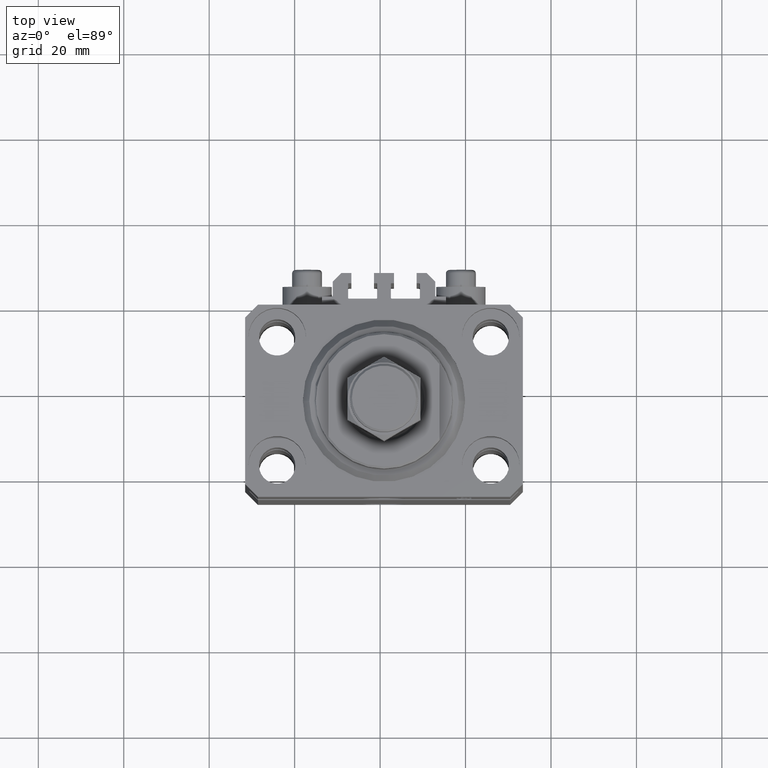
[diagram: clean part render]
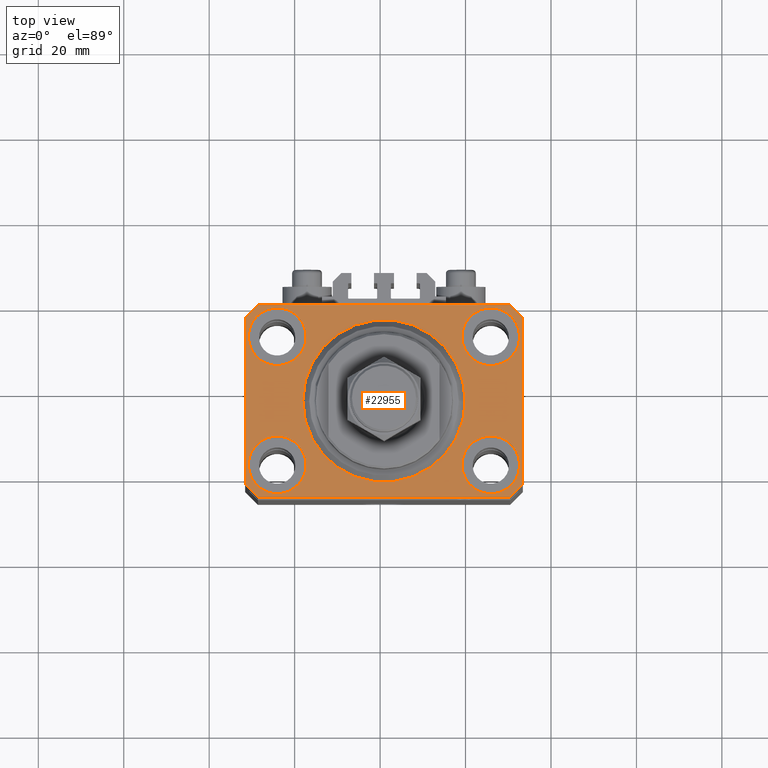
[diagram: same view with one face highlighted and labeled with its STEP entity id]
A machine part, top view. The second image highlights one B-rep face of the part: STEP entity #22955.
In plain terms, the highlighted planar face has unit normal (0, 0, 1).
Its self-contained STEP definition (entity closure, byte-faithful):
#251 = VERTEX_POINT ( 'NONE', #32406 ) ;
#336 = DIRECTION ( 'NONE',  ( 0.000000000000000000, 0.000000000000000000, 1.000000000000000000 ) ) ;
#439 = DIRECTION ( 'NONE',  ( 0.7071067811865483499, 0.7071067811865466846, 0.000000000000000000 ) ) ;
#1397 = DIRECTION ( 'NONE',  ( 1.334402673828349134E-14, 1.000000000000000000, 0.000000000000000000 ) ) ;
#2185 = DIRECTION ( 'NONE',  ( 1.000000000000000000, 0.000000000000000000, 0.000000000000000000 ) ) ;
#2200 = VERTEX_POINT ( 'NONE', #21116 ) ;
#2348 = FACE_BOUND ( 'NONE', #31051, .T. ) ;
#2692 = CARTESIAN_POINT ( 'NONE',  ( -18.24999999997747224, 15.00000000000000000, 0.000000000000000000 ) ) ;
#2762 = DIRECTION ( 'NONE',  ( 0.000000000000000000, 0.000000000000000000, 1.000000000000000000 ) ) ;
#3470 = ORIENTED_EDGE ( 'NONE', *, *, #46108, .T. ) ;
#3638 = AXIS2_PLACEMENT_3D ( 'NONE', #6412, #13908, #13415 ) ;
#4787 = ORIENTED_EDGE ( 'NONE', *, *, #34975, .F. ) ;
#5166 = CARTESIAN_POINT ( 'NONE',  ( 29.49999999999650413, -22.49999999999949196, 0.000000000000000000 ) ) ;
#5510 = CARTESIAN_POINT ( 'NONE',  ( 31.74999999997746869, -15.00000000000000000, 0.000000000000000000 ) ) ;
#6001 = EDGE_CURVE ( 'NONE', #2200, #15724, #17361, .T. ) ;
#6113 = DIRECTION ( 'NONE',  ( -1.000000000000000000, -2.352167425053553784E-16, 0.000000000000000000 ) ) ;
#6412 = CARTESIAN_POINT ( 'NONE',  ( 0.000000000000000000, 0.000000000000000000, 0.000000000000000000 ) ) ;
#6438 = CARTESIAN_POINT ( 'NONE',  ( 31.74999999995845101, 15.00000000000000888, 0.000000000000000000 ) ) ;
#6600 = VERTEX_POINT ( 'NONE', #33617 ) ;
#6850 = CARTESIAN_POINT ( 'NONE',  ( 0.000000000000000000, 0.000000000000000000, 0.000000000000000000 ) ) ;
#7099 = DIRECTION ( 'NONE',  ( 1.000000000000000000, 0.000000000000000000, -0.000000000000000000 ) ) ;
#7818 = AXIS2_PLACEMENT_3D ( 'NONE', #21320, #36040, #25045 ) ;
#8042 = ORIENTED_EDGE ( 'NONE', *, *, #9051, .F. ) ;
#8362 = VERTEX_POINT ( 'NONE', #37786 ) ;
#8504 = ORIENTED_EDGE ( 'NONE', *, *, #14868, .T. ) ;
#8773 = AXIS2_PLACEMENT_3D ( 'NONE', #10572, #10323, #11572 ) ;
#8878 = AXIS2_PLACEMENT_3D ( 'NONE', #40705, #43952, #47436 ) ;
#9051 = EDGE_CURVE ( 'NONE', #41871, #28601, #37934, .T. ) ;
#9225 = CARTESIAN_POINT ( 'NONE',  ( 25.00000000000000355, -15.00000000000000000, 0.000000000000000000 ) ) ;
#9345 = CARTESIAN_POINT ( 'NONE',  ( 32.49999999999702993, 19.49999999999945999, 0.000000000000000000 ) ) ;
#10286 = EDGE_LOOP ( 'NONE', ( #17645, #18177 ) ) ;
#10323 = DIRECTION ( 'NONE',  ( 0.000000000000000000, 0.000000000000000000, 1.000000000000000000 ) ) ;
#10572 = CARTESIAN_POINT ( 'NONE',  ( 24.99999999999999645, 15.00000000000000888, 0.000000000000000000 ) ) ;
#11421 = CARTESIAN_POINT ( 'NONE',  ( -32.49999999999650413, -19.49999999999949907, 0.000000000000000000 ) ) ;
#11560 = ORIENTED_EDGE ( 'NONE', *, *, #46988, .T. ) ;
#11572 = DIRECTION ( 'NONE',  ( 1.000000000000000000, 0.000000000000000000, 0.000000000000000000 ) ) ;
#12088 = ORIENTED_EDGE ( 'NONE', *, *, #29205, .T. ) ;
#13348 = ORIENTED_EDGE ( 'NONE', *, *, #44815, .F. ) ;
#13415 = DIRECTION ( 'NONE',  ( 1.000000000000000000, 0.000000000000000000, 0.000000000000000000 ) ) ;
#13416 = EDGE_LOOP ( 'NONE', ( #26873, #27262 ) ) ;
#13455 = ORIENTED_EDGE ( 'NONE', *, *, #34065, .F. ) ;
#13908 = DIRECTION ( 'NONE',  ( 0.000000000000000000, 0.000000000000000000, 1.000000000000000000 ) ) ;
#14190 = AXIS2_PLACEMENT_3D ( 'NONE', #37127, #29152, #2185 ) ;
#14334 = FACE_BOUND ( 'NONE', #17222, .T. ) ;
#14747 = CARTESIAN_POINT ( 'NONE',  ( -19.00000000000000000, 2.326828918379970970E-15, 0.000000000000000000 ) ) ;
#14868 = EDGE_CURVE ( 'NONE', #15724, #26048, #18235, .T. ) ;
#15230 = AXIS2_PLACEMENT_3D ( 'NONE', #6850, #22076, #7099 ) ;
#15724 = VERTEX_POINT ( 'NONE', #20759 ) ;
#15868 = CARTESIAN_POINT ( 'NONE',  ( -31.75000000002253842, 15.00000000000000000, 0.000000000000000000 ) ) ;
#16050 = VERTEX_POINT ( 'NONE', #2692 ) ;
#16060 = CIRCLE ( 'NONE', #8773, 6.749999999958452790 ) ;
#16825 = VECTOR ( 'NONE', #27429, 1000.000000000000000 ) ;
#17147 = CARTESIAN_POINT ( 'NONE',  ( 32.49999999999651124, -19.49999999999949196, 0.000000000000000000 ) ) ;
#17222 = EDGE_LOOP ( 'NONE', ( #8042, #4787 ) ) ;
#17241 = EDGE_CURVE ( 'NONE', #8362, #40525, #33307, .T. ) ;
#17349 = CARTESIAN_POINT ( 'NONE',  ( 29.49999999999650413, -22.49999999999949196, 0.000000000000000000 ) ) ;
#17361 = LINE ( 'NONE', #43793, #25052 ) ;
#17397 = CIRCLE ( 'NONE', #49245, 6.750000000022533087 ) ;
#17645 = ORIENTED_EDGE ( 'NONE', *, *, #42084, .F. ) ;
#17724 = VECTOR ( 'NONE', #28552, 1000.000000000000000 ) ;
#18004 = DIRECTION ( 'NONE',  ( 1.000000000000000000, 0.000000000000000000, 0.000000000000000000 ) ) ;
#18177 = ORIENTED_EDGE ( 'NONE', *, *, #45348, .F. ) ;
#18235 = LINE ( 'NONE', #36944, #39625 ) ;
#18416 = CIRCLE ( 'NONE', #8878, 6.749999999958452790 ) ;
#18460 = VECTOR ( 'NONE', #439, 1000.000000000000000 ) ;
#18582 = FACE_BOUND ( 'NONE', #10286, .T. ) ;
#19346 = DIRECTION ( 'NONE',  ( 1.000000000000000000, 0.000000000000000000, 0.000000000000000000 ) ) ;
#20101 = LINE ( 'NONE', #9345, #17724 ) ;
#20731 = VERTEX_POINT ( 'NONE', #17349 ) ;
#20759 = CARTESIAN_POINT ( 'NONE',  ( -29.49999999999650413, 22.49999999999949907, 0.000000000000000000 ) ) ;
#21041 = LINE ( 'NONE', #40000, #44662 ) ;
#21116 = CARTESIAN_POINT ( 'NONE',  ( 29.49999999999707967, 22.49999999999951328, 0.000000000000000000 ) ) ;
#21320 = CARTESIAN_POINT ( 'NONE',  ( 0.000000000000000000, 0.000000000000000000, 0.000000000000000000 ) ) ;
#21541 = ORIENTED_EDGE ( 'NONE', *, *, #6001, .T. ) ;
#22076 = DIRECTION ( 'NONE',  ( 0.000000000000000000, 0.000000000000000000, 1.000000000000000000 ) ) ;
#22374 = CARTESIAN_POINT ( 'NONE',  ( 32.49999999999702993, 19.49999999999945999, 0.000000000000000000 ) ) ;
#22503 = VERTEX_POINT ( 'NONE', #36365 ) ;
#22644 = LINE ( 'NONE', #11421, #29628 ) ;
#22955 = ADVANCED_FACE ( 'NONE', ( #25811, #48492, #18582, #2348, #14334, #44520 ), #44774, .T. ) ;
#23435 = LINE ( 'NONE', #34659, #16825 ) ;
#23505 = EDGE_CURVE ( 'NONE', #26048, #42480, #23435, .T. ) ;
#24003 = CIRCLE ( 'NONE', #24776, 6.749999999977465137 ) ;
#24422 = EDGE_LOOP ( 'NONE', ( #13348, #32834 ) ) ;
#24776 = AXIS2_PLACEMENT_3D ( 'NONE', #9225, #39658, #28184 ) ;
#24982 = CARTESIAN_POINT ( 'NONE',  ( -25.00000000000000355, -15.00000000000000000, 0.000000000000000000 ) ) ;
#25045 = DIRECTION ( 'NONE',  ( 1.000000000000000000, 0.000000000000000000, 0.000000000000000000 ) ) ;
#25052 = VECTOR ( 'NONE', #6113, 1000.000000000000000 ) ;
#25154 = CARTESIAN_POINT ( 'NONE',  ( 18.25000000004154543, 15.00000000000000888, 0.000000000000000000 ) ) ;
#25811 = FACE_BOUND ( 'NONE', #13416, .T. ) ;
#26048 = VERTEX_POINT ( 'NONE', #37159 ) ;
#26580 = CARTESIAN_POINT ( 'NONE',  ( 25.00000000000000355, -15.00000000000000000, 0.000000000000000000 ) ) ;
#26873 = ORIENTED_EDGE ( 'NONE', *, *, #45506, .F. ) ;
#27047 = ORIENTED_EDGE ( 'NONE', *, *, #31704, .F. ) ;
#27167 = LINE ( 'NONE', #5166, #18460 ) ;
#27262 = ORIENTED_EDGE ( 'NONE', *, *, #17241, .F. ) ;
#27333 = CARTESIAN_POINT ( 'NONE',  ( -25.00000000000000355, 15.00000000000000000, 0.000000000000000000 ) ) ;
#27429 = DIRECTION ( 'NONE',  ( 0.000000000000000000, -1.000000000000000000, 0.000000000000000000 ) ) ;
#27997 = AXIS2_PLACEMENT_3D ( 'NONE', #24982, #2762, #18004 ) ;
#28184 = DIRECTION ( 'NONE',  ( 1.000000000000000000, 0.000000000000000000, 0.000000000000000000 ) ) ;
#28220 = CARTESIAN_POINT ( 'NONE',  ( -18.24999999995846167, -15.00000000000000000, 0.000000000000000000 ) ) ;
#28552 = DIRECTION ( 'NONE',  ( -0.7071067811865352493, 0.7071067811865597852, 0.000000000000000000 ) ) ;
#28601 = VERTEX_POINT ( 'NONE', #14747 ) ;
#29039 = CARTESIAN_POINT ( 'NONE',  ( 19.00000000000000000, 0.000000000000000000, 0.000000000000000000 ) ) ;
#29045 = EDGE_CURVE ( 'NONE', #251, #35530, #36342, .T. ) ;
#29152 = DIRECTION ( 'NONE',  ( 0.000000000000000000, 0.000000000000000000, 1.000000000000000000 ) ) ;
#29205 = EDGE_CURVE ( 'NONE', #35530, #2200, #20101, .T. ) ;
#29366 = ORIENTED_EDGE ( 'NONE', *, *, #29045, .T. ) ;
#29585 = DIRECTION ( 'NONE',  ( 1.000000000000000000, 0.000000000000000000, 0.000000000000000000 ) ) ;
#29628 = VECTOR ( 'NONE', #41106, 1000.000000000000114 ) ;
#31051 = EDGE_LOOP ( 'NONE', ( #13455, #27047 ) ) ;
#31452 = CARTESIAN_POINT ( 'NONE',  ( -32.49999999999650413, -19.49999999999949907, 0.000000000000000000 ) ) ;
#31704 = EDGE_CURVE ( 'NONE', #41671, #16050, #35588, .T. ) ;
#31789 = DIRECTION ( 'NONE',  ( 0.000000000000000000, 0.000000000000000000, 1.000000000000000000 ) ) ;
#32406 = CARTESIAN_POINT ( 'NONE',  ( 32.49999999999651124, -19.49999999999949196, 0.000000000000000000 ) ) ;
#32834 = ORIENTED_EDGE ( 'NONE', *, *, #40930, .F. ) ;
#33307 = CIRCLE ( 'NONE', #14190, 6.750000000041541881 ) ;
#33617 = CARTESIAN_POINT ( 'NONE',  ( -29.49999999999650413, -22.49999999999949907, 0.000000000000000000 ) ) ;
#34065 = EDGE_CURVE ( 'NONE', #16050, #41671, #17397, .T. ) ;
#34659 = CARTESIAN_POINT ( 'NONE',  ( -32.49999999999650413, 19.49999999999949907, 0.000000000000000000 ) ) ;
#34975 = EDGE_CURVE ( 'NONE', #28601, #41871, #41290, .T. ) ;
#35237 = VECTOR ( 'NONE', #1397, 1000.000000000000000 ) ;
#35530 = VERTEX_POINT ( 'NONE', #22374 ) ;
#35588 = CIRCLE ( 'NONE', #38811, 6.750000000022533087 ) ;
#36040 = DIRECTION ( 'NONE',  ( 0.000000000000000000, 0.000000000000000000, 1.000000000000000000 ) ) ;
#36342 = LINE ( 'NONE', #17147, #35237 ) ;
#36365 = CARTESIAN_POINT ( 'NONE',  ( 18.25000000002253842, -15.00000000000000000, 0.000000000000000000 ) ) ;
#36536 = VERTEX_POINT ( 'NONE', #6438 ) ;
#36703 = DIRECTION ( 'NONE',  ( -0.7071067811865474617, -0.7071067811865474617, 0.000000000000000000 ) ) ;
#36944 = CARTESIAN_POINT ( 'NONE',  ( -29.49999999999650413, 22.49999999999949907, 0.000000000000000000 ) ) ;
#37127 = CARTESIAN_POINT ( 'NONE',  ( -25.00000000000000355, -15.00000000000000000, 0.000000000000000000 ) ) ;
#37159 = CARTESIAN_POINT ( 'NONE',  ( -32.49999999999650413, 19.49999999999949907, 0.000000000000000000 ) ) ;
#37476 = VERTEX_POINT ( 'NONE', #5510 ) ;
#37786 = CARTESIAN_POINT ( 'NONE',  ( -31.75000000004154899, -15.00000000000000000, 0.000000000000000000 ) ) ;
#37934 = CIRCLE ( 'NONE', #3638, 19.00000000000000000 ) ;
#38356 = AXIS2_PLACEMENT_3D ( 'NONE', #26580, #336, #19346 ) ;
#38811 = AXIS2_PLACEMENT_3D ( 'NONE', #27333, #31789, #46997 ) ;
#39625 = VECTOR ( 'NONE', #36703, 1000.000000000000114 ) ;
#39658 = DIRECTION ( 'NONE',  ( 0.000000000000000000, 0.000000000000000000, 1.000000000000000000 ) ) ;
#40000 = CARTESIAN_POINT ( 'NONE',  ( -29.49999999999650413, -22.49999999999949907, 0.000000000000000000 ) ) ;
#40216 = EDGE_CURVE ( 'NONE', #6600, #20731, #21041, .T. ) ;
#40525 = VERTEX_POINT ( 'NONE', #28220 ) ;
#40705 = CARTESIAN_POINT ( 'NONE',  ( 24.99999999999999645, 15.00000000000000888, 0.000000000000000000 ) ) ;
#40930 = EDGE_CURVE ( 'NONE', #22503, #37476, #46282, .T. ) ;
#41106 = DIRECTION ( 'NONE',  ( 0.7071067811865474617, -0.7071067811865474617, 0.000000000000000000 ) ) ;
#41290 = CIRCLE ( 'NONE', #7818, 19.00000000000000000 ) ;
#41564 = DIRECTION ( 'NONE',  ( 0.000000000000000000, 0.000000000000000000, 1.000000000000000000 ) ) ;
#41671 = VERTEX_POINT ( 'NONE', #15868 ) ;
#41871 = VERTEX_POINT ( 'NONE', #29039 ) ;
#42084 = EDGE_CURVE ( 'NONE', #36536, #48991, #16060, .T. ) ;
#42480 = VERTEX_POINT ( 'NONE', #31452 ) ;
#42727 = ORIENTED_EDGE ( 'NONE', *, *, #23505, .T. ) ;
#43410 = EDGE_LOOP ( 'NONE', ( #21541, #8504, #42727, #11560, #46125, #3470, #29366, #12088 ) ) ;
#43736 = DIRECTION ( 'NONE',  ( 1.000000000000000000, 1.176083712526788232E-16, 0.000000000000000000 ) ) ;
#43793 = CARTESIAN_POINT ( 'NONE',  ( 29.49999999999707967, 22.49999999999951328, 0.000000000000000000 ) ) ;
#43952 = DIRECTION ( 'NONE',  ( 0.000000000000000000, 0.000000000000000000, 1.000000000000000000 ) ) ;
#44520 = FACE_OUTER_BOUND ( 'NONE', #43410, .T. ) ;
#44662 = VECTOR ( 'NONE', #43736, 1000.000000000000000 ) ;
#44774 = PLANE ( 'NONE',  #15230 ) ;
#44815 = EDGE_CURVE ( 'NONE', #37476, #22503, #24003, .T. ) ;
#45348 = EDGE_CURVE ( 'NONE', #48991, #36536, #18416, .T. ) ;
#45506 = EDGE_CURVE ( 'NONE', #40525, #8362, #46320, .T. ) ;
#46108 = EDGE_CURVE ( 'NONE', #20731, #251, #27167, .T. ) ;
#46125 = ORIENTED_EDGE ( 'NONE', *, *, #40216, .T. ) ;
#46282 = CIRCLE ( 'NONE', #38356, 6.749999999977465137 ) ;
#46320 = CIRCLE ( 'NONE', #27997, 6.750000000041541881 ) ;
#46988 = EDGE_CURVE ( 'NONE', #42480, #6600, #22644, .T. ) ;
#46997 = DIRECTION ( 'NONE',  ( 1.000000000000000000, 0.000000000000000000, 0.000000000000000000 ) ) ;
#47436 = DIRECTION ( 'NONE',  ( 1.000000000000000000, 0.000000000000000000, 0.000000000000000000 ) ) ;
#48492 = FACE_BOUND ( 'NONE', #24422, .T. ) ;
#48775 = CARTESIAN_POINT ( 'NONE',  ( -25.00000000000000355, 15.00000000000000000, 0.000000000000000000 ) ) ;
#48991 = VERTEX_POINT ( 'NONE', #25154 ) ;
#49245 = AXIS2_PLACEMENT_3D ( 'NONE', #48775, #41564, #29585 ) ;